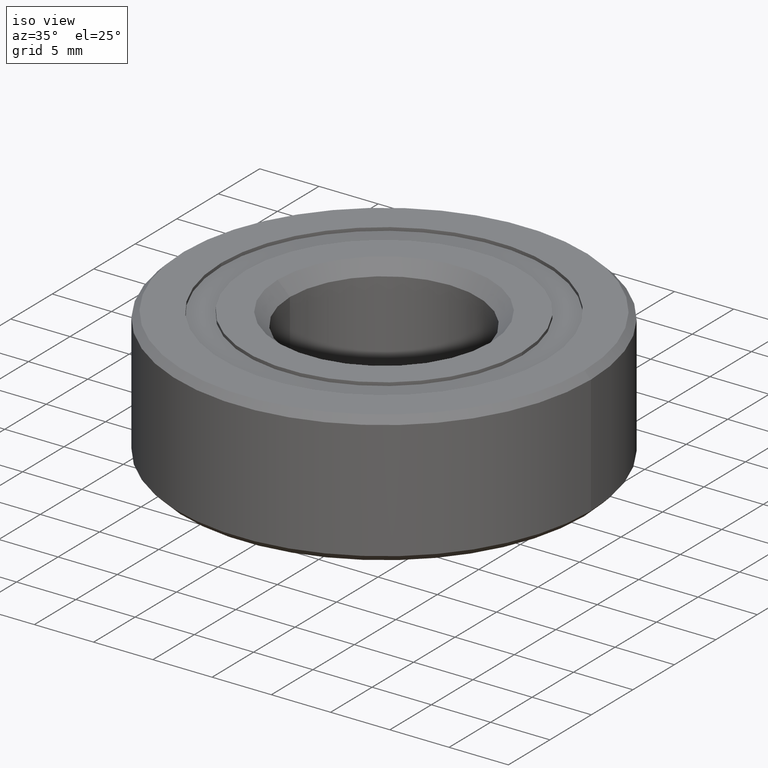
[diagram: clean part render]
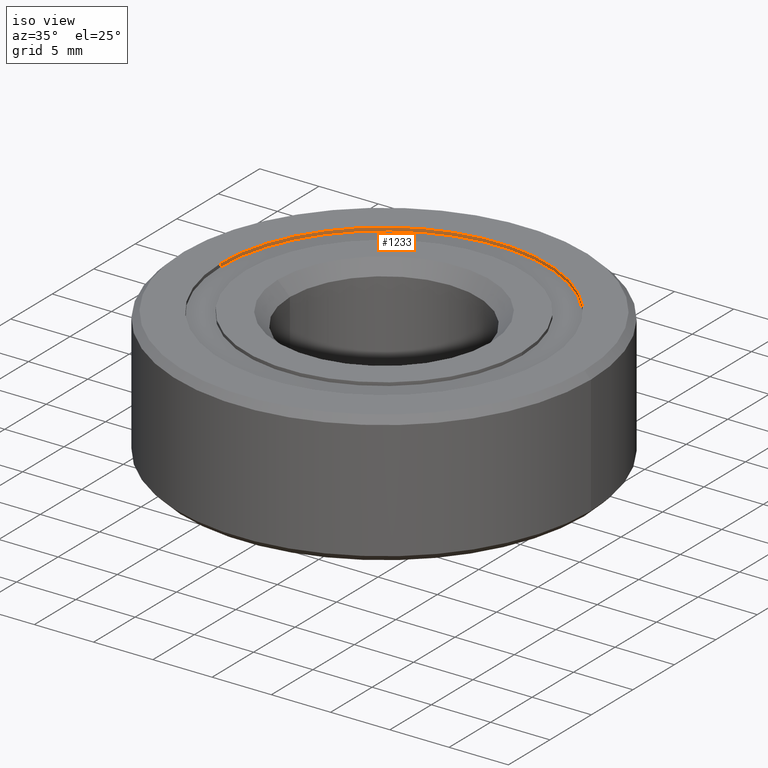
[diagram: same view with one face highlighted and labeled with its STEP entity id]
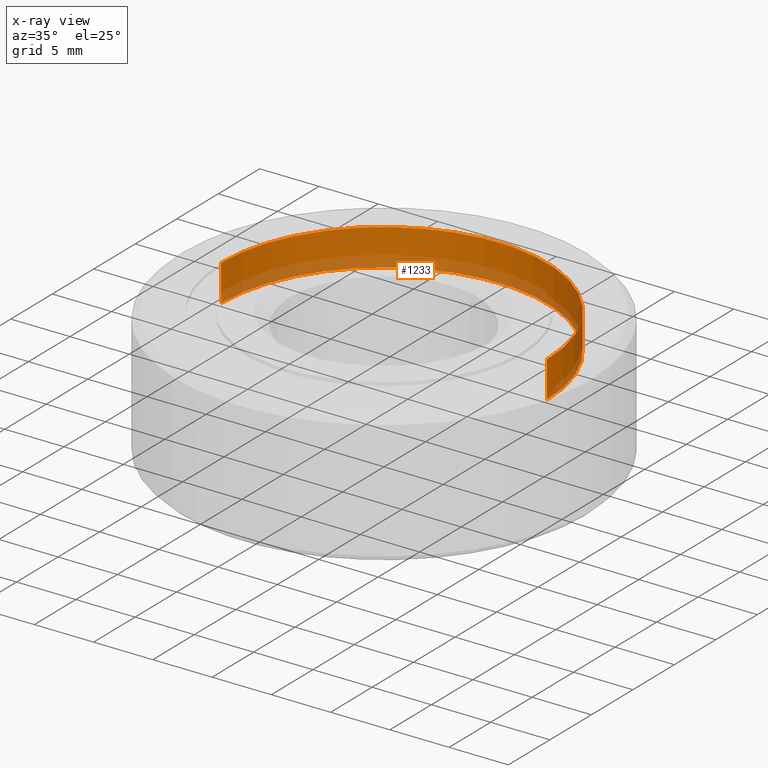
[diagram: x-ray of the same camera — body ghosted, the highlighted face saturated]
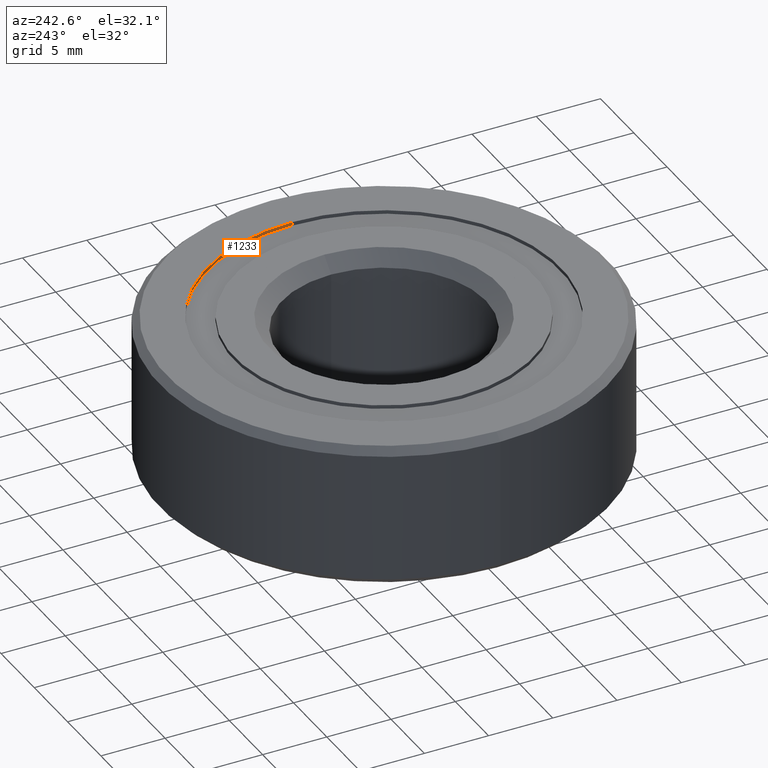
[diagram: same view with one face highlighted and labeled with its STEP entity id]
A machine part, iso view. The second image highlights one B-rep face of the part: STEP entity #1233.
The next image is the same camera in x-ray: the body ghosted, the highlighted face saturated — about 29% of this face is hidden behind the body in this view.
A second angle (auxiliary view) of the same face is appended — the face is thin or edge-on in the first view.
In plain terms, the highlighted cylindrical surface (partial cylindrical patch) has radius 13.7467 mm, axis along (-0, -0, 1).
Its self-contained STEP definition (entity closure, byte-faithful):
#185 = LINE ( 'NONE', #1841, #1966 ) ;
#187 = EDGE_CURVE ( 'NONE', #2327, #1063, #185, .T. ) ;
#321 = CARTESIAN_POINT ( 'NONE',  ( 0.0000000000000000000, 0.0000000000000000000, 0.2187500000000000000 ) ) ;
#432 = VERTEX_POINT ( 'NONE', #2373 ) ;
#526 = CIRCLE ( 'NONE', #913, 0.5412087912087910624 ) ;
#741 = ORIENTED_EDGE ( 'NONE', *, *, #1725, .F. ) ;
#830 = FACE_OUTER_BOUND ( 'NONE', #1426, .T. ) ;
#913 = AXIS2_PLACEMENT_3D ( 'NONE', #1806, #1028, #2331 ) ;
#919 = DIRECTION ( 'NONE',  ( 1.000000000000000000, 0.0000000000000000000, 0.0000000000000000000 ) ) ;
#979 = AXIS2_PLACEMENT_3D ( 'NONE', #1112, #1844, #919 ) ;
#1028 = DIRECTION ( 'NONE',  ( -0.0000000000000000000, -0.0000000000000000000, 1.000000000000000000 ) ) ;
#1048 = VECTOR ( 'NONE', #2069, 39.37007874015748143 ) ;
#1063 = VERTEX_POINT ( 'NONE', #2075 ) ;
#1112 = CARTESIAN_POINT ( 'NONE',  ( 0.0000000000000000000, 0.0000000000000000000, 0.2187500000000000555 ) ) ;
#1143 = VERTEX_POINT ( 'NONE', #1564 ) ;
#1221 = ORIENTED_EDGE ( 'NONE', *, *, #187, .T. ) ;
#1233 = ADVANCED_FACE ( 'NONE', ( #830 ), #1762, .F. ) ;
#1419 = DIRECTION ( 'NONE',  ( -0.0000000000000000000, -0.0000000000000000000, 1.000000000000000000 ) ) ;
#1426 = EDGE_LOOP ( 'NONE', ( #2168, #741, #1221, #2001 ) ) ;
#1475 = DIRECTION ( 'NONE',  ( -0.0000000000000000000, -0.0000000000000000000, 1.000000000000000000 ) ) ;
#1520 = LINE ( 'NONE', #2271, #1048 ) ;
#1564 = CARTESIAN_POINT ( 'NONE',  ( -0.5412087912087910624, 6.627896138242541838E-17, 0.09722222222222216825 ) ) ;
#1656 = AXIS2_PLACEMENT_3D ( 'NONE', #321, #1419, #2129 ) ;
#1717 = CIRCLE ( 'NONE', #979, 0.5412087912087910624 ) ;
#1725 = EDGE_CURVE ( 'NONE', #2327, #1143, #526, .T. ) ;
#1762 = CYLINDRICAL_SURFACE ( 'NONE', #1656, 0.5412087912087910624 ) ;
#1806 = CARTESIAN_POINT ( 'NONE',  ( 0.0000000000000000000, 0.0000000000000000000, 0.09722222222222216825 ) ) ;
#1841 = CARTESIAN_POINT ( 'NONE',  ( 0.5412087912087910624, 0.0000000000000000000, 0.2187500000000000000 ) ) ;
#1844 = DIRECTION ( 'NONE',  ( -0.0000000000000000000, -0.0000000000000000000, 1.000000000000000000 ) ) ;
#1966 = VECTOR ( 'NONE', #1475, 39.37007874015748143 ) ;
#2001 = ORIENTED_EDGE ( 'NONE', *, *, #2293, .T. ) ;
#2015 = CARTESIAN_POINT ( 'NONE',  ( 0.5412087912087910624, 0.0000000000000000000, 0.09722222222222216825 ) ) ;
#2069 = DIRECTION ( 'NONE',  ( -0.0000000000000000000, -0.0000000000000000000, 1.000000000000000000 ) ) ;
#2075 = CARTESIAN_POINT ( 'NONE',  ( 0.5412087912087910624, 0.0000000000000000000, 0.2187500000000000555 ) ) ;
#2129 = DIRECTION ( 'NONE',  ( 1.000000000000000000, 0.0000000000000000000, 0.0000000000000000000 ) ) ;
#2168 = ORIENTED_EDGE ( 'NONE', *, *, #2395, .F. ) ;
#2271 = CARTESIAN_POINT ( 'NONE',  ( -0.5412087912087910624, 6.627896138242541838E-17, 0.2187500000000000000 ) ) ;
#2293 = EDGE_CURVE ( 'NONE', #1063, #432, #1717, .T. ) ;
#2327 = VERTEX_POINT ( 'NONE', #2015 ) ;
#2331 = DIRECTION ( 'NONE',  ( 1.000000000000000000, 0.0000000000000000000, 0.0000000000000000000 ) ) ;
#2373 = CARTESIAN_POINT ( 'NONE',  ( -0.5412087912087910624, 6.627896138242541838E-17, 0.2187500000000000555 ) ) ;
#2395 = EDGE_CURVE ( 'NONE', #1143, #432, #1520, .T. ) ;